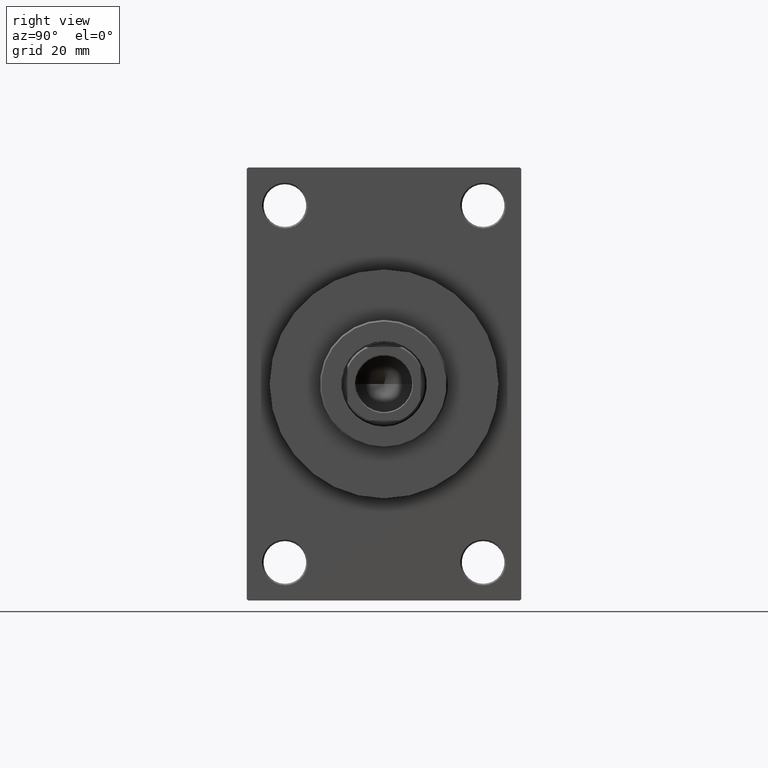
[diagram: clean part render]
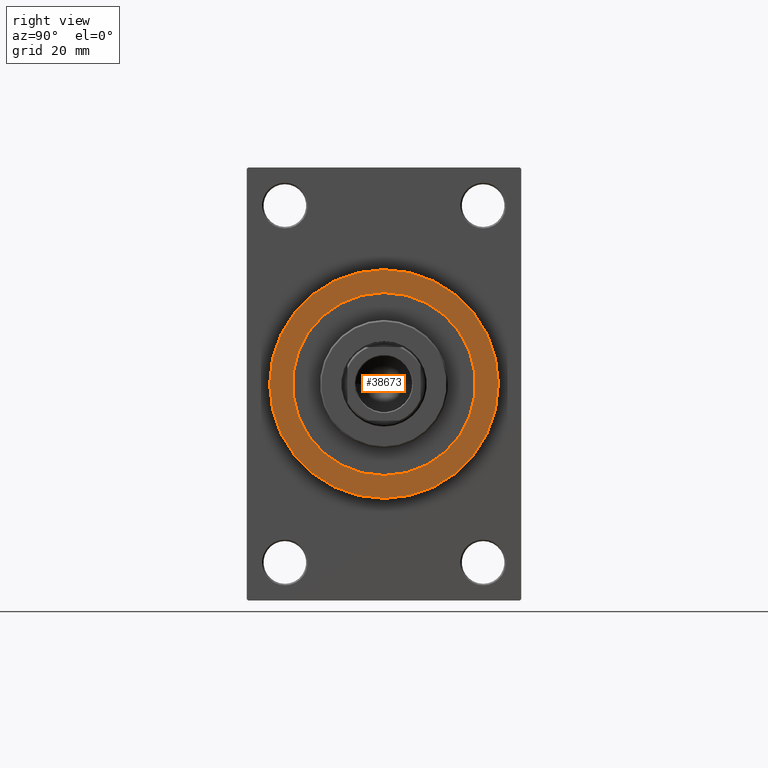
[diagram: same view with one face highlighted and labeled with its STEP entity id]
A machine part, right view. The second image highlights one B-rep face of the part: STEP entity #38673.
In plain terms, the highlighted planar face has unit normal (1, 0, 0).
Its self-contained STEP definition (entity closure, byte-faithful):
#220 = CIRCLE ( 'NONE', #38370, 37.50000000000000711 ) ;
#475 = AXIS2_PLACEMENT_3D ( 'NONE', #36160, #33049, #3692 ) ;
#516 = CARTESIAN_POINT ( 'NONE',  ( 144.0000000000000284, 0.000000000000000000, -30.00000000000000000 ) ) ;
#1749 = CARTESIAN_POINT ( 'NONE',  ( 144.0000000000000284, 0.000000000000000000, 37.50000000000000711 ) ) ;
#1891 = EDGE_CURVE ( 'NONE', #15518, #30553, #33423, .T. ) ;
#1978 = DIRECTION ( 'NONE',  ( 1.000000000000000000, 0.000000000000000000, 0.000000000000000000 ) ) ;
#3679 = CARTESIAN_POINT ( 'NONE',  ( 144.0000000000000284, 4.592425496802575156E-15, -37.50000000000000711 ) ) ;
#3692 = DIRECTION ( 'NONE',  ( 0.000000000000000000, 0.000000000000000000, -1.000000000000000000 ) ) ;
#4941 = DIRECTION ( 'NONE',  ( 1.000000000000000000, 0.000000000000000000, 0.000000000000000000 ) ) ;
#5114 = AXIS2_PLACEMENT_3D ( 'NONE', #38989, #1978, #38277 ) ;
#5921 = AXIS2_PLACEMENT_3D ( 'NONE', #39833, #21450, #43416 ) ;
#8752 = CARTESIAN_POINT ( 'NONE',  ( 144.0000000000000284, 0.000000000000000000, 0.000000000000000000 ) ) ;
#10293 = EDGE_CURVE ( 'NONE', #30530, #19934, #220, .T. ) ;
#13002 = ORIENTED_EDGE ( 'NONE', *, *, #1891, .F. ) ;
#15518 = VERTEX_POINT ( 'NONE', #516 ) ;
#15884 = EDGE_LOOP ( 'NONE', ( #13002, #43597 ) ) ;
#17705 = DIRECTION ( 'NONE',  ( 0.000000000000000000, 0.000000000000000000, -1.000000000000000000 ) ) ;
#19934 = VERTEX_POINT ( 'NONE', #1749 ) ;
#21069 = CIRCLE ( 'NONE', #475, 37.50000000000000711 ) ;
#21450 = DIRECTION ( 'NONE',  ( 1.000000000000000000, 0.000000000000000000, 0.000000000000000000 ) ) ;
#22626 = EDGE_CURVE ( 'NONE', #19934, #30530, #21069, .T. ) ;
#24501 = EDGE_CURVE ( 'NONE', #30553, #15518, #44011, .T. ) ;
#25339 = CARTESIAN_POINT ( 'NONE',  ( 144.0000000000000284, 0.000000000000000000, 0.000000000000000000 ) ) ;
#27760 = FACE_BOUND ( 'NONE', #15884, .T. ) ;
#30530 = VERTEX_POINT ( 'NONE', #3679 ) ;
#30553 = VERTEX_POINT ( 'NONE', #33040 ) ;
#33040 = CARTESIAN_POINT ( 'NONE',  ( 144.0000000000000284, 3.673940397442059178E-15, 30.00000000000000000 ) ) ;
#33049 = DIRECTION ( 'NONE',  ( 1.000000000000000000, 0.000000000000000000, 0.000000000000000000 ) ) ;
#33423 = CIRCLE ( 'NONE', #36456, 30.00000000000000000 ) ;
#34834 = ORIENTED_EDGE ( 'NONE', *, *, #10293, .T. ) ;
#34928 = PLANE ( 'NONE',  #5114 ) ;
#36160 = CARTESIAN_POINT ( 'NONE',  ( 144.0000000000000284, 0.000000000000000000, 0.000000000000000000 ) ) ;
#36456 = AXIS2_PLACEMENT_3D ( 'NONE', #25339, #43726, #17705 ) ;
#38277 = DIRECTION ( 'NONE',  ( 0.000000000000000000, 0.000000000000000000, -1.000000000000000000 ) ) ;
#38370 = AXIS2_PLACEMENT_3D ( 'NONE', #8752, #4941, #40749 ) ;
#38673 = ADVANCED_FACE ( 'NONE', ( #27760, #38740 ), #34928, .T. ) ;
#38740 = FACE_OUTER_BOUND ( 'NONE', #40994, .T. ) ;
#38989 = CARTESIAN_POINT ( 'NONE',  ( 144.0000000000000284, 0.000000000000000000, 0.000000000000000000 ) ) ;
#39833 = CARTESIAN_POINT ( 'NONE',  ( 144.0000000000000284, 0.000000000000000000, 0.000000000000000000 ) ) ;
#40749 = DIRECTION ( 'NONE',  ( 0.000000000000000000, 0.000000000000000000, -1.000000000000000000 ) ) ;
#40994 = EDGE_LOOP ( 'NONE', ( #43509, #34834 ) ) ;
#43416 = DIRECTION ( 'NONE',  ( 0.000000000000000000, 0.000000000000000000, -1.000000000000000000 ) ) ;
#43509 = ORIENTED_EDGE ( 'NONE', *, *, #22626, .T. ) ;
#43597 = ORIENTED_EDGE ( 'NONE', *, *, #24501, .F. ) ;
#43726 = DIRECTION ( 'NONE',  ( 1.000000000000000000, 0.000000000000000000, 0.000000000000000000 ) ) ;
#44011 = CIRCLE ( 'NONE', #5921, 30.00000000000000000 ) ;